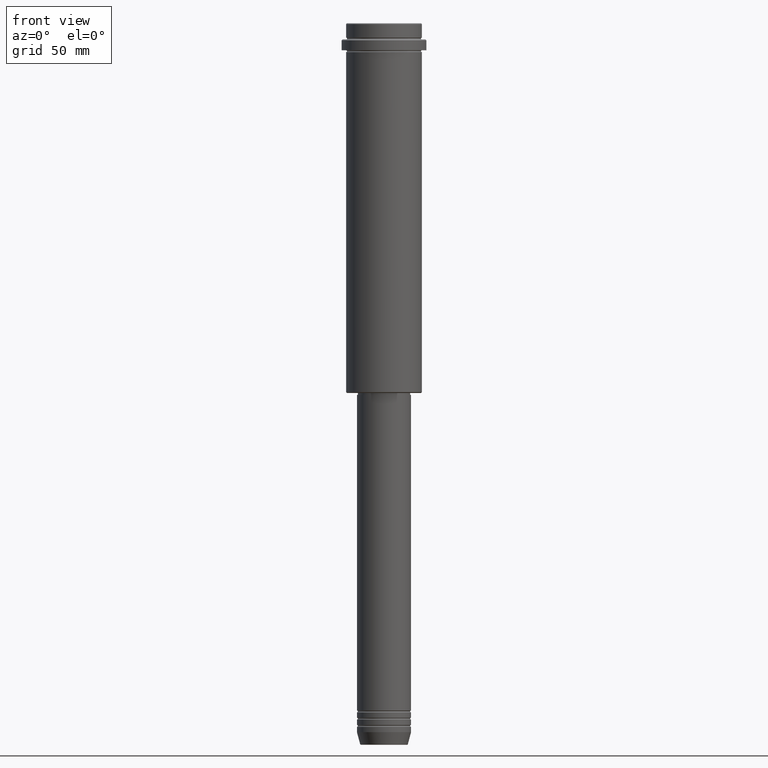
[diagram: clean part render]
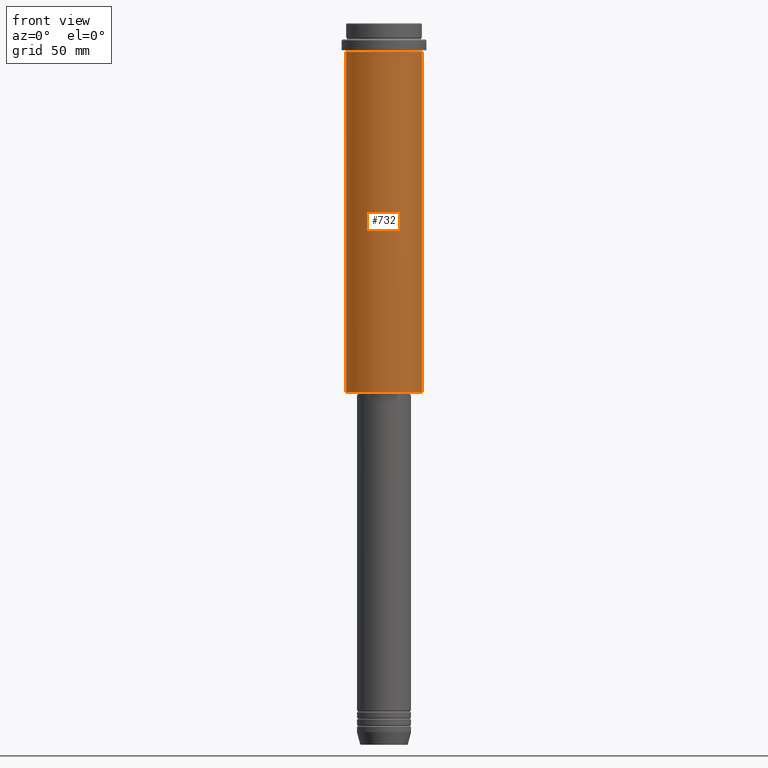
[diagram: same view with one face highlighted and labeled with its STEP entity id]
A machine part, front view. The second image highlights one B-rep face of the part: STEP entity #732.
In plain terms, the highlighted cylindrical surface (partial cylindrical patch) has radius 21 mm, axis along (-0, -0, 1).
Its self-contained STEP definition (entity closure, byte-faithful):
#31 = DIRECTION ( 'NONE',  ( 1.000000000000000000, 0.000000000000000000, 0.000000000000000000 ) ) ;
#46 = FACE_OUTER_BOUND ( 'NONE', #961, .T. ) ;
#89 = VECTOR ( 'NONE', #969, 1000.000000000000000 ) ;
#96 = VERTEX_POINT ( 'NONE', #601 ) ;
#100 = ORIENTED_EDGE ( 'NONE', *, *, #1334, .T. ) ;
#106 = LINE ( 'NONE', #773, #1093 ) ;
#135 = CARTESIAN_POINT ( 'NONE',  ( 20.99999999999999645, 0.000000000000000000, -16.00000000000000355 ) ) ;
#138 = CARTESIAN_POINT ( 'NONE',  ( 0.000000000000000000, 0.000000000000000000, 0.000000000000000000 ) ) ;
#190 = ORIENTED_EDGE ( 'NONE', *, *, #648, .F. ) ;
#210 = DIRECTION ( 'NONE',  ( -0.000000000000000000, -0.000000000000000000, 1.000000000000000000 ) ) ;
#222 = DIRECTION ( 'NONE',  ( -0.000000000000000000, -0.000000000000000000, 1.000000000000000000 ) ) ;
#321 = CARTESIAN_POINT ( 'NONE',  ( -20.99999999999999645, 2.571758278209441267E-15, 0.000000000000000000 ) ) ;
#377 = CARTESIAN_POINT ( 'NONE',  ( 20.99999999999999645, 0.000000000000000000, -204.5000000000000284 ) ) ;
#469 = DIRECTION ( 'NONE',  ( -0.000000000000000000, -0.000000000000000000, 1.000000000000000000 ) ) ;
#476 = CIRCLE ( 'NONE', #812, 20.99999999999999645 ) ;
#502 = VERTEX_POINT ( 'NONE', #377 ) ;
#601 = CARTESIAN_POINT ( 'NONE',  ( -20.99999999999999645, 2.571758278209441267E-15, -204.5000000000000284 ) ) ;
#648 = EDGE_CURVE ( 'NONE', #745, #1393, #476, .T. ) ;
#732 = ADVANCED_FACE ( 'NONE', ( #46 ), #1239, .T. ) ;
#745 = VERTEX_POINT ( 'NONE', #917 ) ;
#763 = CARTESIAN_POINT ( 'NONE',  ( 0.000000000000000000, 0.000000000000000000, -16.00000000000000355 ) ) ;
#773 = CARTESIAN_POINT ( 'NONE',  ( 20.99999999999999645, 0.000000000000000000, 0.000000000000000000 ) ) ;
#812 = AXIS2_PLACEMENT_3D ( 'NONE', #763, #222, #1416 ) ;
#917 = CARTESIAN_POINT ( 'NONE',  ( -20.99999999999999645, 2.571758278209441267E-15, -16.00000000000000355 ) ) ;
#930 = AXIS2_PLACEMENT_3D ( 'NONE', #138, #469, #31 ) ;
#961 = EDGE_LOOP ( 'NONE', ( #1309, #100, #1175, #190 ) ) ;
#969 = DIRECTION ( 'NONE',  ( -0.000000000000000000, -0.000000000000000000, 1.000000000000000000 ) ) ;
#978 = AXIS2_PLACEMENT_3D ( 'NONE', #1235, #1336, #1227 ) ;
#990 = LINE ( 'NONE', #321, #89 ) ;
#1093 = VECTOR ( 'NONE', #210, 1000.000000000000000 ) ;
#1175 = ORIENTED_EDGE ( 'NONE', *, *, #1241, .T. ) ;
#1180 = EDGE_CURVE ( 'NONE', #96, #745, #990, .T. ) ;
#1195 = CIRCLE ( 'NONE', #978, 20.99999999999999645 ) ;
#1227 = DIRECTION ( 'NONE',  ( -1.000000000000000000, 0.000000000000000000, 0.000000000000000000 ) ) ;
#1235 = CARTESIAN_POINT ( 'NONE',  ( 0.000000000000000000, 0.000000000000000000, -204.5000000000000284 ) ) ;
#1239 = CYLINDRICAL_SURFACE ( 'NONE', #930, 20.99999999999999645 ) ;
#1241 = EDGE_CURVE ( 'NONE', #502, #1393, #106, .T. ) ;
#1309 = ORIENTED_EDGE ( 'NONE', *, *, #1180, .F. ) ;
#1334 = EDGE_CURVE ( 'NONE', #96, #502, #1195, .T. ) ;
#1336 = DIRECTION ( 'NONE',  ( -0.000000000000000000, -0.000000000000000000, 1.000000000000000000 ) ) ;
#1393 = VERTEX_POINT ( 'NONE', #135 ) ;
#1416 = DIRECTION ( 'NONE',  ( 1.000000000000000000, 0.000000000000000000, 0.000000000000000000 ) ) ;